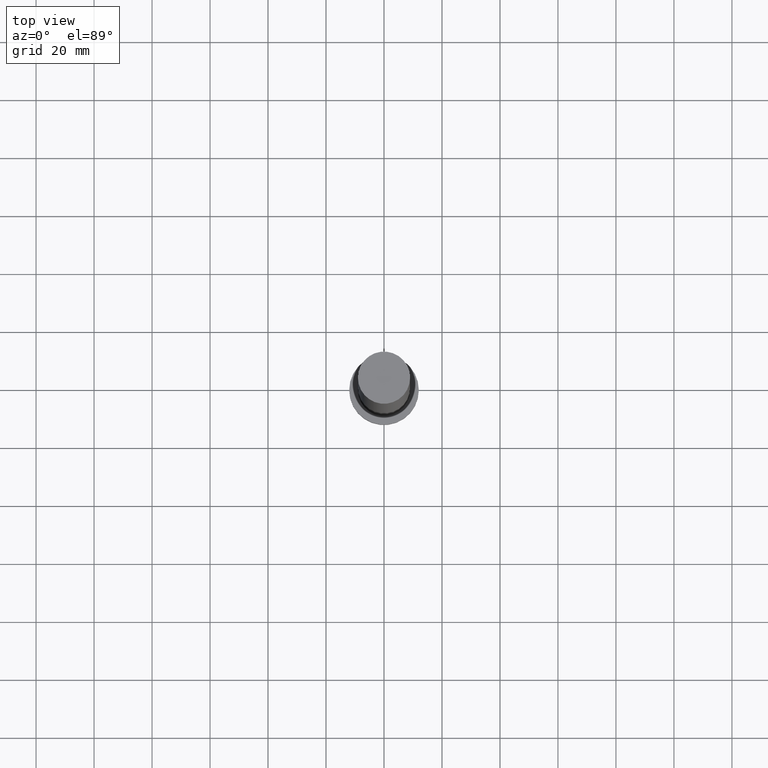
[diagram: clean part render]
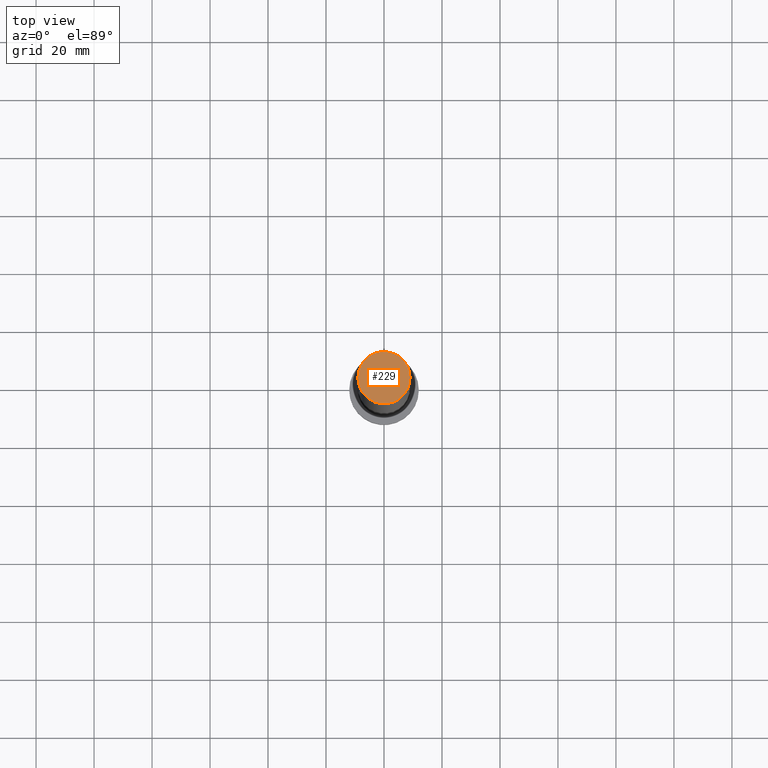
[diagram: same view with one face highlighted and labeled with its STEP entity id]
A machine part, top view. The second image highlights one B-rep face of the part: STEP entity #229.
In plain terms, the highlighted planar face has unit normal (0, 0, 1).
Its self-contained STEP definition (entity closure, byte-faithful):
#18 = DIRECTION ( 'NONE',  ( 0.000000000000000000, 0.000000000000000000, 1.000000000000000000 ) ) ;
#28 = CARTESIAN_POINT ( 'NONE',  ( 9.000000000000001776, 1.102182119232617911E-15, 250.0000000000000000 ) ) ;
#33 = CARTESIAN_POINT ( 'NONE',  ( 0.000000000000000000, 0.000000000000000000, 250.0000000000000000 ) ) ;
#44 = ORIENTED_EDGE ( 'NONE', *, *, #136, .T. ) ;
#65 = CARTESIAN_POINT ( 'NONE',  ( 0.000000000000000000, 0.000000000000000000, 250.0000000000000000 ) ) ;
#66 = ORIENTED_EDGE ( 'NONE', *, *, #221, .T. ) ;
#88 = CIRCLE ( 'NONE', #238, 9.000000000000001776 ) ;
#89 = DIRECTION ( 'NONE',  ( 1.000000000000000000, 0.000000000000000000, 0.000000000000000000 ) ) ;
#90 = CIRCLE ( 'NONE', #143, 9.000000000000001776 ) ;
#93 = DIRECTION ( 'NONE',  ( 1.000000000000000000, 0.000000000000000000, 0.000000000000000000 ) ) ;
#106 = CARTESIAN_POINT ( 'NONE',  ( -9.000000000000001776, 0.000000000000000000, 250.0000000000000000 ) ) ;
#114 = DIRECTION ( 'NONE',  ( 0.000000000000000000, 0.000000000000000000, 1.000000000000000000 ) ) ;
#124 = EDGE_LOOP ( 'NONE', ( #66, #44 ) ) ;
#127 = DIRECTION ( 'NONE',  ( 0.000000000000000000, 0.000000000000000000, 1.000000000000000000 ) ) ;
#136 = EDGE_CURVE ( 'NONE', #184, #187, #88, .T. ) ;
#143 = AXIS2_PLACEMENT_3D ( 'NONE', #33, #18, #93 ) ;
#152 = PLANE ( 'NONE',  #178 ) ;
#176 = CARTESIAN_POINT ( 'NONE',  ( 0.000000000000000000, 0.000000000000000000, 250.0000000000000000 ) ) ;
#178 = AXIS2_PLACEMENT_3D ( 'NONE', #176, #114, #220 ) ;
#184 = VERTEX_POINT ( 'NONE', #28 ) ;
#187 = VERTEX_POINT ( 'NONE', #106 ) ;
#199 = FACE_OUTER_BOUND ( 'NONE', #124, .T. ) ;
#220 = DIRECTION ( 'NONE',  ( 1.000000000000000000, 0.000000000000000000, -0.000000000000000000 ) ) ;
#221 = EDGE_CURVE ( 'NONE', #187, #184, #90, .T. ) ;
#229 = ADVANCED_FACE ( 'NONE', ( #199 ), #152, .T. ) ;
#238 = AXIS2_PLACEMENT_3D ( 'NONE', #65, #127, #89 ) ;